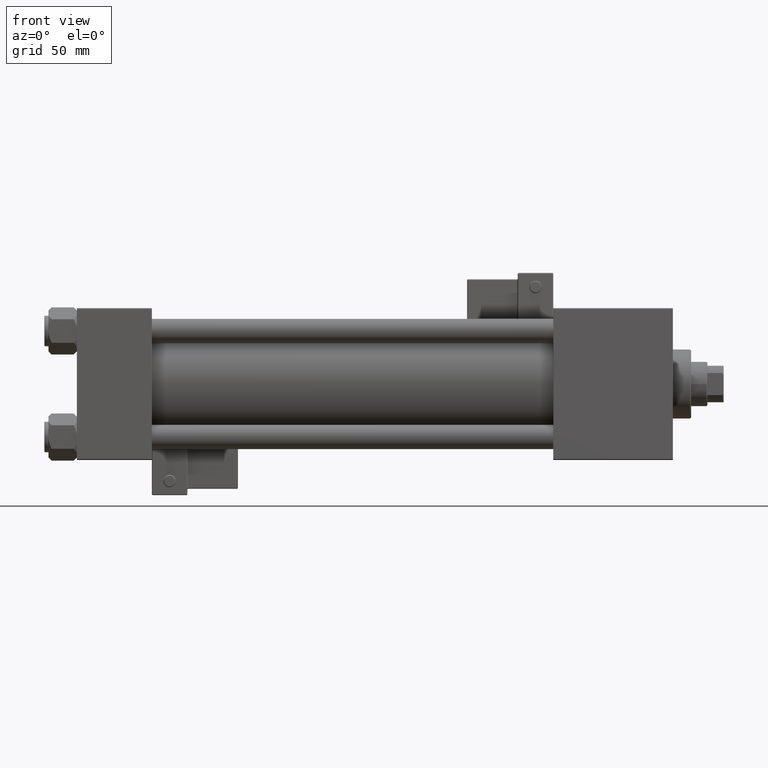
[diagram: clean part render]
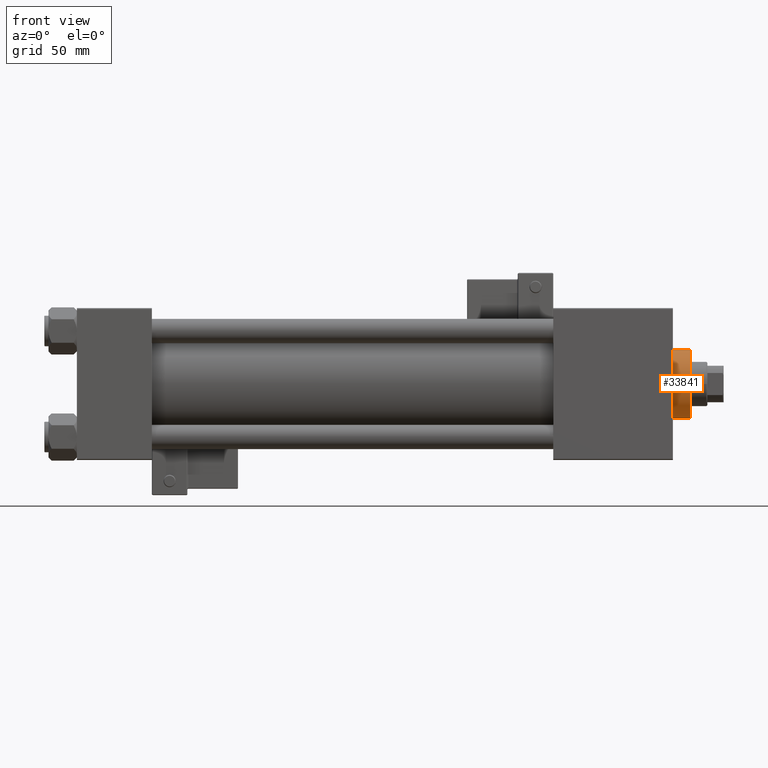
[diagram: same view with one face highlighted and labeled with its STEP entity id]
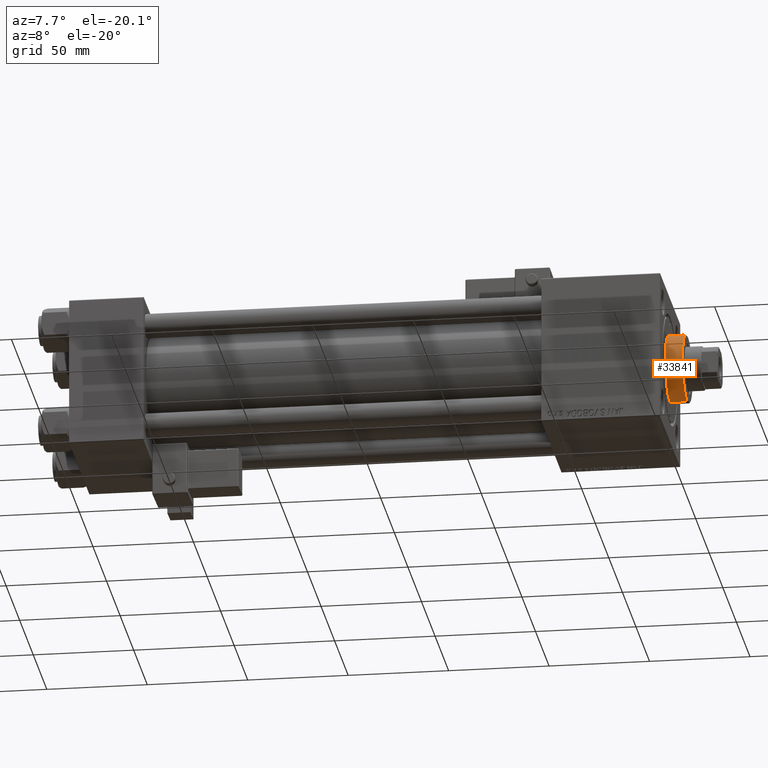
[diagram: same view with one face highlighted and labeled with its STEP entity id]
A machine part, front view. The second image highlights one B-rep face of the part: STEP entity #33841.
A second angle (auxiliary view) of the same face is appended — the face is thin or edge-on in the first view.
In plain terms, the highlighted cylindrical surface (edge-blend (fillet) strip) has radius 17 mm, axis along (-1, -0, -0).
Its self-contained STEP definition (entity closure, byte-faithful):
#511 = CARTESIAN_POINT ( 'NONE',  ( -17.00000000000000000, 0.000000000000000000, 28.69999999999999929 ) ) ;
#2264 = CARTESIAN_POINT ( 'NONE',  ( 17.00000000000000000, 2.081899558550500280E-15, 37.19999999999999574 ) ) ;
#2493 = CARTESIAN_POINT ( 'NONE',  ( 17.00000000000000000, 2.081899558550500280E-15, 28.69999999999999929 ) ) ;
#2829 = CARTESIAN_POINT ( 'NONE',  ( -17.00000000000000000, 0.000000000000000000, 37.69999999999999574 ) ) ;
#2884 = CARTESIAN_POINT ( 'NONE',  ( 0.000000000000000000, 0.000000000000000000, 37.19999999999999574 ) ) ;
#4884 = CYLINDRICAL_SURFACE ( 'NONE', #35809, 17.00000000000000000 ) ;
#7665 = AXIS2_PLACEMENT_3D ( 'NONE', #45211, #25016, #32449 ) ;
#8264 = LINE ( 'NONE', #48641, #40795 ) ;
#16788 = EDGE_CURVE ( 'NONE', #22274, #17691, #51475, .T. ) ;
#17691 = VERTEX_POINT ( 'NONE', #511 ) ;
#19579 = AXIS2_PLACEMENT_3D ( 'NONE', #2884, #35059, #31338 ) ;
#21101 = CARTESIAN_POINT ( 'NONE',  ( 0.000000000000000000, 0.000000000000000000, 37.69999999999999574 ) ) ;
#22274 = VERTEX_POINT ( 'NONE', #23397 ) ;
#23397 = CARTESIAN_POINT ( 'NONE',  ( -17.00000000000000000, 0.000000000000000000, 37.19999999999999574 ) ) ;
#24367 = ORIENTED_EDGE ( 'NONE', *, *, #30202, .F. ) ;
#25016 = DIRECTION ( 'NONE',  ( 0.000000000000000000, 0.000000000000000000, 1.000000000000000000 ) ) ;
#25350 = DIRECTION ( 'NONE',  ( -0.000000000000000000, -0.000000000000000000, -1.000000000000000000 ) ) ;
#25386 = ORIENTED_EDGE ( 'NONE', *, *, #26848, .T. ) ;
#26848 = EDGE_CURVE ( 'NONE', #17691, #41512, #45023, .T. ) ;
#28082 = CIRCLE ( 'NONE', #19579, 17.00000000000000000 ) ;
#29321 = FACE_OUTER_BOUND ( 'NONE', #48038, .T. ) ;
#30202 = EDGE_CURVE ( 'NONE', #35663, #41512, #8264, .T. ) ;
#30317 = EDGE_CURVE ( 'NONE', #35663, #22274, #28082, .T. ) ;
#30487 = DIRECTION ( 'NONE',  ( -0.000000000000000000, -0.000000000000000000, -1.000000000000000000 ) ) ;
#31175 = ORIENTED_EDGE ( 'NONE', *, *, #16788, .T. ) ;
#31338 = DIRECTION ( 'NONE',  ( 1.000000000000000000, 0.000000000000000000, 0.000000000000000000 ) ) ;
#32449 = DIRECTION ( 'NONE',  ( 1.000000000000000000, 0.000000000000000000, 0.000000000000000000 ) ) ;
#33841 = ADVANCED_FACE ( 'NONE', ( #29321 ), #4884, .T. ) ;
#35059 = DIRECTION ( 'NONE',  ( 0.000000000000000000, 0.000000000000000000, -1.000000000000000000 ) ) ;
#35663 = VERTEX_POINT ( 'NONE', #2264 ) ;
#35809 = AXIS2_PLACEMENT_3D ( 'NONE', #21101, #25350, #37309 ) ;
#37309 = DIRECTION ( 'NONE',  ( -1.000000000000000000, 0.000000000000000000, 0.000000000000000000 ) ) ;
#40795 = VECTOR ( 'NONE', #44674, 1000.000000000000000 ) ;
#41512 = VERTEX_POINT ( 'NONE', #2493 ) ;
#44674 = DIRECTION ( 'NONE',  ( -0.000000000000000000, -0.000000000000000000, -1.000000000000000000 ) ) ;
#44877 = ORIENTED_EDGE ( 'NONE', *, *, #30317, .T. ) ;
#45023 = CIRCLE ( 'NONE', #7665, 17.00000000000000000 ) ;
#45211 = CARTESIAN_POINT ( 'NONE',  ( 0.000000000000000000, 0.000000000000000000, 28.69999999999999929 ) ) ;
#48038 = EDGE_LOOP ( 'NONE', ( #24367, #44877, #31175, #25386 ) ) ;
#48641 = CARTESIAN_POINT ( 'NONE',  ( 17.00000000000000000, 2.081899558550500280E-15, 37.69999999999999574 ) ) ;
#48880 = VECTOR ( 'NONE', #30487, 1000.000000000000000 ) ;
#51475 = LINE ( 'NONE', #2829, #48880 ) ;